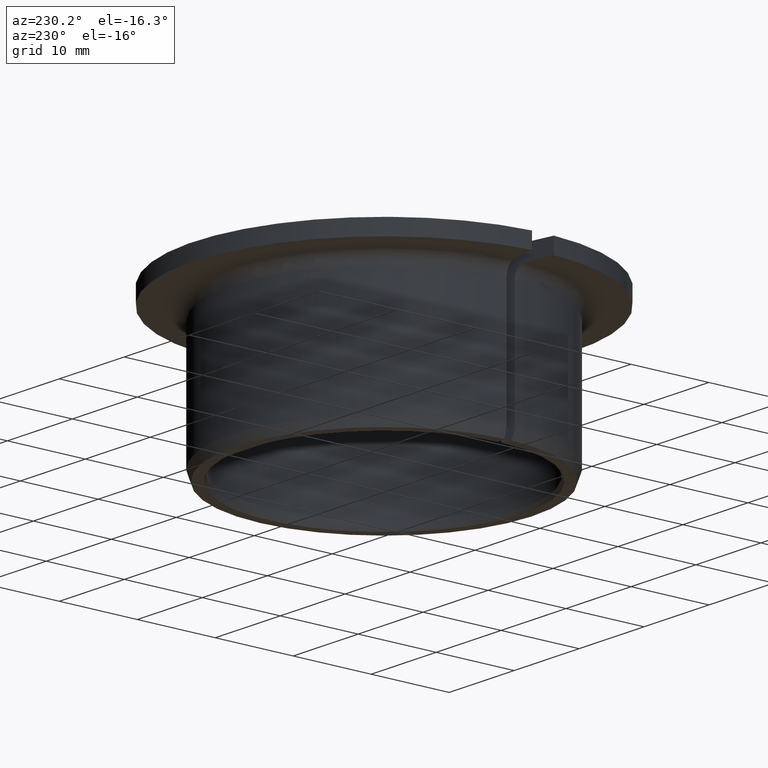
[diagram: clean part render]
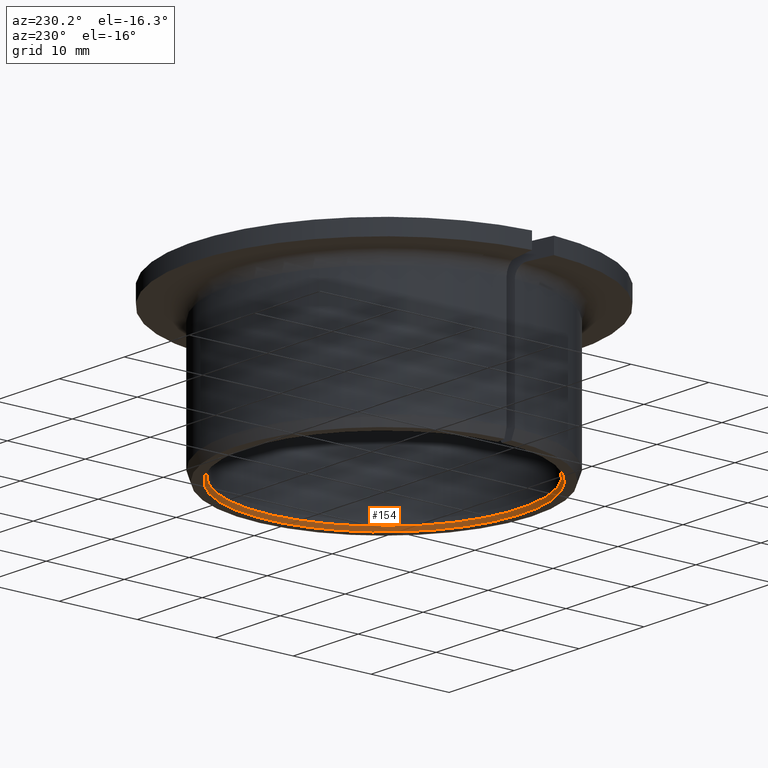
[diagram: same view with one face highlighted and labeled with its STEP entity id]
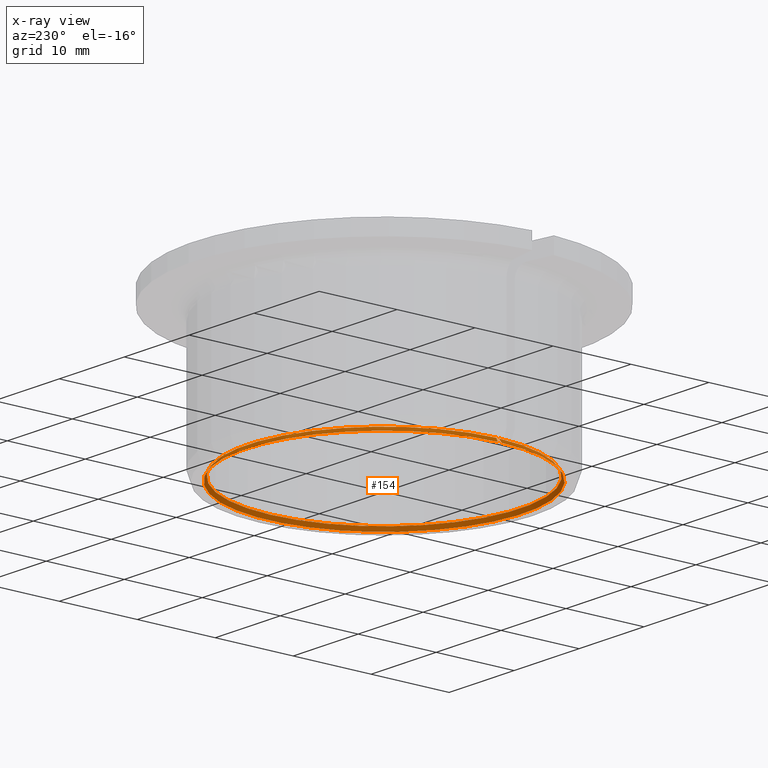
[diagram: x-ray of the same camera — body ghosted, the highlighted face saturated]
A machine part, auxiliary view. The second image highlights one B-rep face of the part: STEP entity #154.
The next image is the same camera in x-ray: the body ghosted, the highlighted face saturated — about 0% of this face is hidden behind the body in this view.
In plain terms, the highlighted conical surface has half-angle 30 deg.
Its self-contained STEP definition (entity closure, byte-faithful):
#154=ADVANCED_FACE('',(#169),#170,.F.);
#169=FACE_OUTER_BOUND('',#194,.T.);
#170=CONICAL_SURFACE('',#195,0.0175,0.5235987755983);
#194=EDGE_LOOP('',(#229,#230,#231,#232));
#195=AXIS2_PLACEMENT_3D('',#233,#234,#235);
#229=ORIENTED_EDGE('',*,*,#322,.T.);
#230=ORIENTED_EDGE('',*,*,#323,.T.);
#231=ORIENTED_EDGE('',*,*,#324,.F.);
#232=ORIENTED_EDGE('',*,*,#320,.F.);
#233=CARTESIAN_POINT('',(0.0,0.0,0.0005));
#234=DIRECTION('',(0.0,-6.12323399573677E-017,-1.0));
#235=DIRECTION('',(0.0,1.0,-6.12323399573677E-017));
#320=EDGE_CURVE('',#357,#359,#360,.T.);
#322=EDGE_CURVE('',#357,#362,#363,.T.);
#323=EDGE_CURVE('',#362,#364,#365,.T.);
#324=EDGE_CURVE('',#359,#364,#366,.T.);
#357=VERTEX_POINT('',#444);
#359=VERTEX_POINT('',#447);
#360=B_SPLINE_CURVE_WITH_KNOTS('',3,(#448,#449,#450,#451),.UNSPECIFIED.,.F.,.F.,(4,4),(2.31707683946212E-007,0.000579533393781442),.UNSPECIFIED.);
#362=VERTEX_POINT('',#454);
#363=CIRCLE('',#455,0.0177886751345948);
#364=VERTEX_POINT('',#456);
#365=B_SPLINE_CURVE_WITH_KNOTS('',3,(#457,#458,#459,#460),.UNSPECIFIED.,.F.,.F.,(4,4),(2.3170768394626E-007,0.000579533393781442),.UNSPECIFIED.);
#366=CIRCLE('',#461,0.0175);
#444=CARTESIAN_POINT('',(0.0177872270566494,-0.000226972860385233,6.43083039248804E-019));
#447=CARTESIAN_POINT('',(0.0174991132321836,-0.000176170619616813,0.0005));
#448=CARTESIAN_POINT('',(0.0177872270566494,-0.000226972860385233,-3.3454573876717E-019));
#449=CARTESIAN_POINT('',(0.0176912048363039,-0.000210041552190785,0.000166676006251675));
#450=CARTESIAN_POINT('',(0.0175951671585202,-0.00019310751843293,0.000333342831684055));
#451=CARTESIAN_POINT('',(0.0174991132321836,-0.000176170619616813,0.000500000000000009));
#454=CARTESIAN_POINT('',(0.0177872270566494,0.000226972860385233,6.15709166660622E-019));
#455=AXIS2_PLACEMENT_3D('',#532,#533,#534);
#456=CARTESIAN_POINT('',(0.0174991132321836,0.000176170619616813,0.0005));
#457=CARTESIAN_POINT('',(0.0177872270566494,0.000226972860385233,-3.54897581537848E-019));
#458=CARTESIAN_POINT('',(0.0176912048363039,0.000210041552190786,0.000166676006251675));
#459=CARTESIAN_POINT('',(0.0175951671585202,0.00019310751843293,0.000333342831684055));
#460=CARTESIAN_POINT('',(0.0174991132321836,0.000176170619616813,0.000500000000000008));
#461=AXIS2_PLACEMENT_3D('',#535,#536,#537);
#532=CARTESIAN_POINT('',(0.0,0.0,0.0));
#533=DIRECTION('',(0.0,-6.12323399573677E-017,-1.0));
#534=DIRECTION('',(0.0,1.0,-6.12323399573677E-017));
#535=CARTESIAN_POINT('',(0.0,0.0,0.0005));
#536=DIRECTION('',(0.0,-6.12323399573677E-017,-1.0));
#537=DIRECTION('',(0.0,1.0,-6.12323399573677E-017));